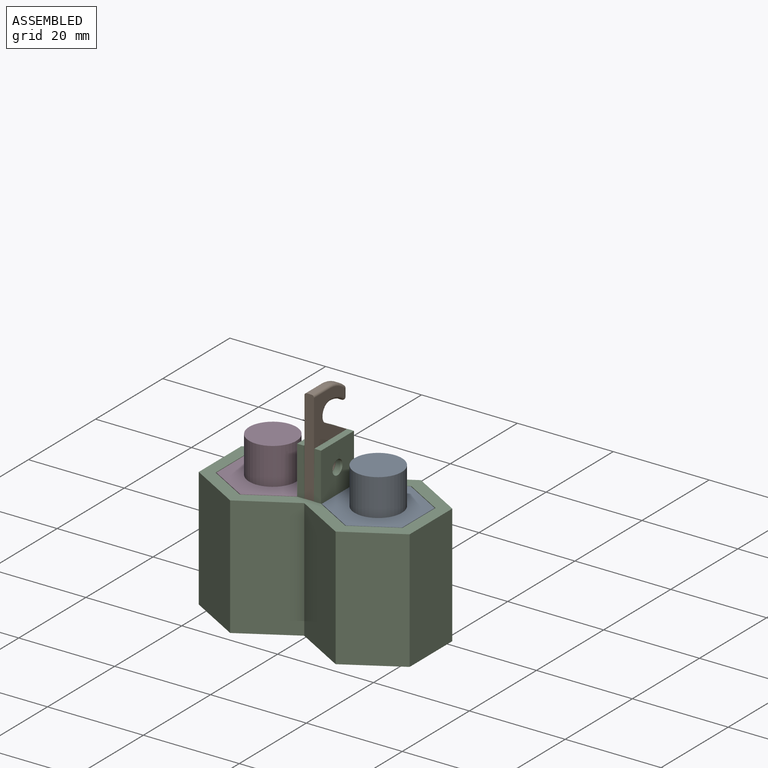
[diagram: assembled view]
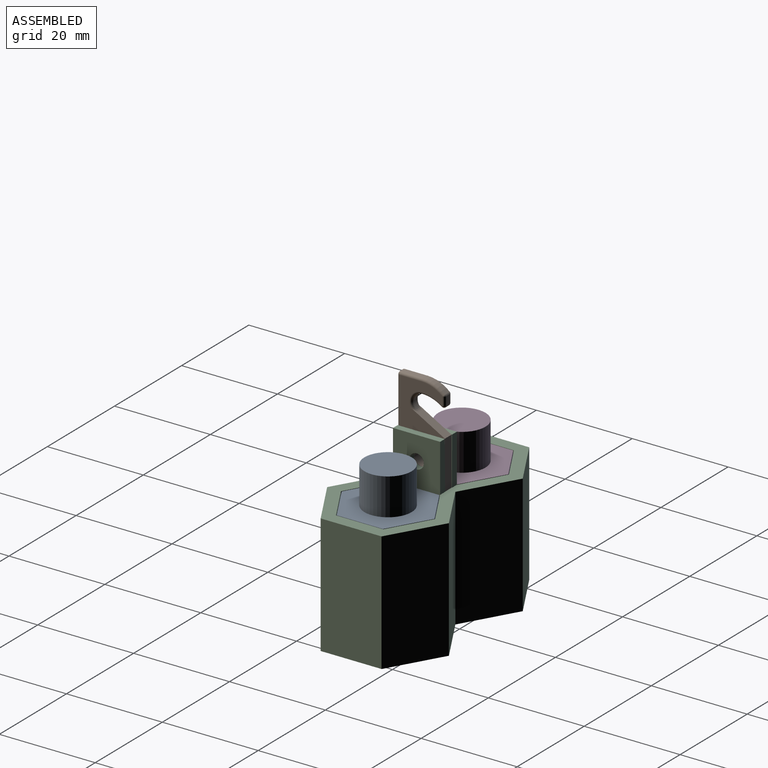
[diagram: assembled view, second angle]
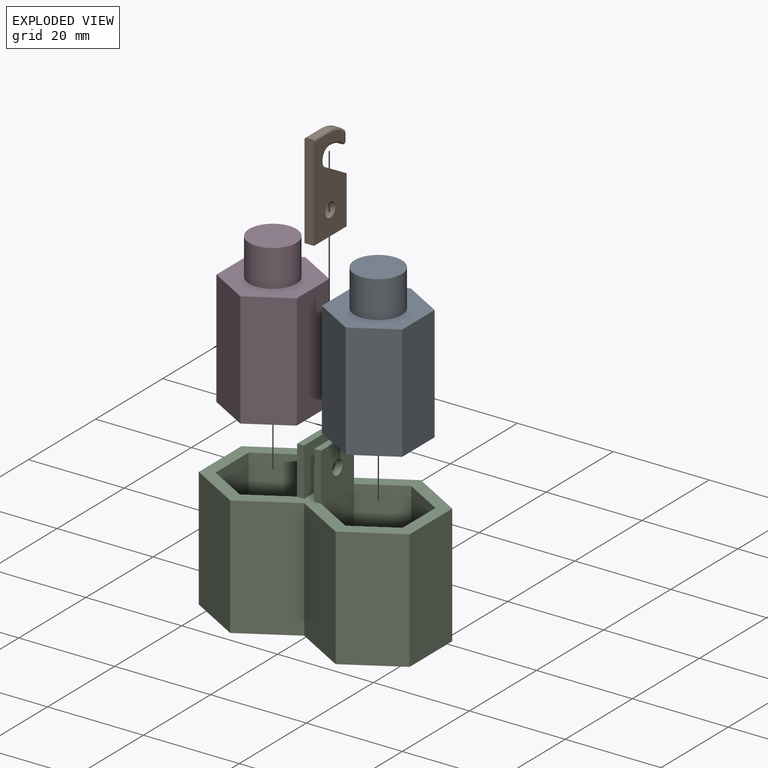
[diagram: exploded view]
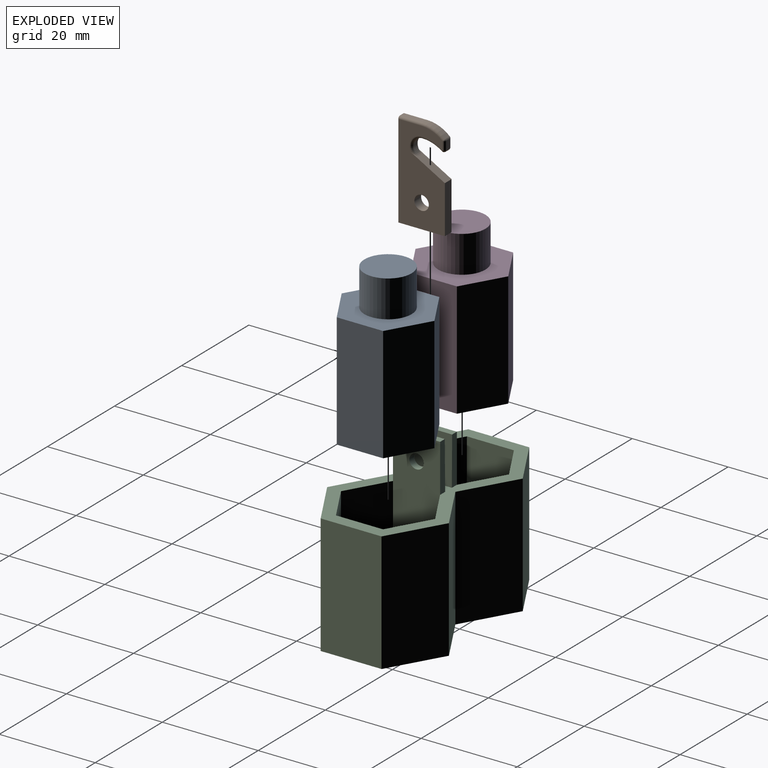
[diagram: exploded view, second angle]
ASSEMBLY  parts=4 mates=3
PART A: 10 faces, bbox 19.4x16.8x31.7 mm
  f0: plane 24x8.38mm, normal (0.87,-0.5,0), area 232.2mm2, adj f1,f5,f6,f7
  f1: plane 24x8.38mm, normal (0.87,0.5,0), area 232.2mm2, adj f0,f2,f6,f7
  f2: plane 24x9.68mm, normal (0,1,0), area 232.2mm2, adj f1,f3,f6,f7
  f3: plane 24x8.38mm, normal (-0.87,0.5,0), area 232.2mm2, adj f2,f4,f6,f7
  f4: plane 24x8.38mm, normal (-0.87,-0.5,0), area 232.2mm2, adj f3,f5,f6,f7
  f5: plane 24x9.68mm, normal (0,-1,0), area 232.2mm2, adj f0,f4,f6,f7
  f6: plane 19.35x16.76mm, normal (0,0,1), area 167.1mm2, adj f0,f1,f2,f3,f4,f5,f8
  f7: plane 19.35x16.76mm, normal (0,0,-1), area 243.3mm2, adj f0,f1,f2,f3,f4,f5
  f8: cylinder r=4.92mm len=9.85mm, axis (0,0,-1), area 238.3mm2, adj f6,f9
  f9: plane 9.85x9.85mm, normal (0,0,1), area 76.2mm2, adj f8
PART B: 28 faces, bbox 20.7x10x2.1 mm
  f0: plane 1.71x1mm, normal (0,-1,0), area 1.7mm2, adj f18,f19,f23,f24
  f1: plane 19.5x9.7mm, normal (0,0,1), area 142.1mm2, adj f3,f4,f6,f8,f11,f14,f17,f23
  f2: plane 19.5x9.7mm, normal (0,0,-1), area 142.1mm2, adj f3,f4,f6,f8,f11,f12,f13,f16
  f3: plane 9.7x2mm, normal (-1,0,0), area 19.4mm2, adj f1,f2,f4,f6
  f4: plane 10x2mm, normal (0,-1,0), area 20mm2, adj f1,f2,f3,f8
  f5: plane 4.85x1mm, normal (1,0,0), area 4.9mm2, adj f6,f10,f12,f14
  f6: plane 20x2mm, normal (0,1,0), area 39.9mm2, adj f1,f2,f3,f5,f12,f14
  f7: cylinder r=2mm len=3.73mm, axis (0,0,1), area 5.2mm2, adj f8,f9,f16,f27
  f8: plane 7.26x4.11mm, normal (0.87,-0.49,0), area 13.9mm2, adj f1,f2,f4,f7,f16,f27
  f9: cylinder r=6.97mm len=4.06mm, axis (0,0,1), area 4.3mm2, adj f7,f20,f24,f26
  f10: cylinder r=7.06mm len=4.69mm, axis (0,0,1), area 5.2mm2, adj f5,f13,f17,f18
  f11: cylinder r=1.5mm len=3mm, axis (0,0,1), area 18.8mm2, adj f1,f2
  f12: cylinder r=0.5mm len=4.85mm, axis (0,-1,0), area 3.8mm2, adj f2,f5,f6,f13
  f13: torus R=6.56mm, axis (0,0,1), area 3.9mm2, adj f2,f10,f12,f15
  f14: cylinder r=0.5mm len=4.85mm, axis (0,1,0), area 3.8mm2, adj f1,f5,f6,f17
  f15: sphere r=0.5mm, area 0.2mm2, adj f13,f18,f19
  f16: torus R=2.5mm, axis (0,0,1), area 3.9mm2, adj f2,f7,f8,f20
  f17: torus R=6.56mm, axis (0,0,1), area 3.9mm2, adj f1,f10,f14,f21
  f18: cylinder r=0.5mm len=1mm, axis (0,0,1), area 0.4mm2, adj f0,f10,f15,f21
  f19: cylinder r=0.5mm len=1.71mm, axis (1,0,0), area 1.3mm2, adj f0,f2,f15,f22
  f20: torus R=7.47mm, axis (0,0,1), area 3.5mm2, adj f2,f9,f16,f22
  f21: sphere r=0.5mm, area 0.2mm2, adj f17,f18,f23
  f22: sphere r=0.5mm, area 0.6mm2, adj f19,f20,f24
  f23: cylinder r=0.5mm len=1.71mm, axis (-1,0,0), area 1.3mm2, adj f0,f1,f21,f25
  f24: cylinder r=0.5mm len=1mm, axis (0,0,1), area 1.1mm2, adj f0,f9,f22,f25
  f25: sphere r=0.5mm, area 0.5mm2, adj f23,f24,f26
  f26: torus R=7.47mm, axis (0,0,1), area 3.5mm2, adj f1,f9,f25,f27
  f27: torus R=2.5mm, axis (0,0,1), area 3.9mm2, adj f1,f7,f8,f26
PART C: 36 faces, bbox 44x25.4x35 mm
  f0: plane 10x1.5mm, normal (0,-1,0), area 14.5mm2, adj f2,f4,f27,f34
  f1: plane 10x1.5mm, normal (0,1,0), area 14.5mm2, adj f4,f22,f32,f35
  f2: plane 9.82x1.4mm, normal (0,0,1), area 13.7mm2, adj f0,f27,f31,f34
  f3: cylinder r=1.5mm len=3mm, axis (1,0,0), area 13.7mm2, adj f27,f34
  f4: plane 44x25.4mm, normal (0,0,1), area 308.3mm2, adj f0,f1,f5,f6,f7,f8,f9,f10
  f5: plane 25x11mm, normal (-0.5,0.87,0), area 317.5mm2, adj f4,f6,f14,f15
  f6: plane 25x11mm, normal (0.5,0.87,0), area 317.5mm2, adj f4,f5,f7,f15
  f7: plane 25x11mm, normal (-0.5,0.87,0), area 317.5mm2, adj f4,f6,f8,f15
  f8: plane 25x12.7mm, normal (-1,0,0), area 317.5mm2, adj f4,f7,f9,f15
  f9: plane 25x11mm, normal (-0.5,-0.87,0), area 317.5mm2, adj f4,f8,f10,f15
  f10: plane 25x11mm, normal (0.5,-0.87,0), area 317.5mm2, adj f4,f9,f11,f15
  f11: plane 25x11mm, normal (-0.5,-0.87,0), area 317.5mm2, adj f4,f10,f12,f15
  f12: plane 25x11mm, normal (0.5,-0.87,0), area 317.5mm2, adj f4,f11,f13,f15
  f13: plane 25x12.7mm, normal (1,0,0), area 317.5mm2, adj f4,f12,f14,f15
  f14: plane 25x11mm, normal (0.5,0.87,0), area 317.5mm2, adj f4,f5,f13,f15
  f15: plane 44x25.4mm, normal (0,0,-1), area 838.3mm2, adj f5,f6,f7,f8,f9,f10,f11,f12
  f16: plane 24x8.5mm, normal (0.5,-0.87,0), area 235.6mm2, adj f4,f17,f27,f28
  f17: plane 24x8.5mm, normal (-0.5,-0.87,0), area 235.6mm2, adj f4,f16,f18,f28
  f18: plane 24x9.82mm, normal (-1,0,0), area 235.6mm2, adj f4,f17,f19,f28
  f19: plane 24x8.5mm, normal (-0.5,0.87,0), area 235.6mm2, adj f4,f18,f20,f28
  f20: plane 24x8.5mm, normal (0.5,0.87,0), area 235.6mm2, adj f4,f19,f27,f28
  f21: plane 24x8.5mm, normal (-0.5,-0.87,0), area 235.6mm2, adj f4,f22,f26,f29
  f22: plane 34x9.82mm, normal (-1,0,0), area 326.6mm2, adj f1,f21,f23,f29,f30,f32,f33
  f23: plane 24x8.5mm, normal (-0.5,0.87,0), area 235.6mm2, adj f4,f22,f24,f29
  f24: plane 24x8.5mm, normal (0.5,0.87,0), area 235.6mm2, adj f4,f23,f25,f29
  f25: plane 24x9.82mm, normal (1,0,0), area 235.6mm2, adj f4,f24,f26,f29
  f26: plane 24x8.5mm, normal (0.5,-0.87,0), area 235.6mm2, adj f4,f21,f25,f29
  f27: plane 34x9.82mm, normal (1,0,0), area 326.6mm2, adj f0,f2,f3,f16,f20,f28,f31
  f28: plane 19.63x17mm, normal (0,0,1), area 250.3mm2, adj f16,f17,f18,f19,f20,f27
  f29: plane 19.63x17mm, normal (0,0,1), area 250.3mm2, adj f21,f22,f23,f24,f25,f26
  f30: plane 10x1.5mm, normal (0,-1,0), area 14.5mm2, adj f4,f22,f32,f35
  f31: plane 10x1.5mm, normal (0,1,0), area 14.5mm2, adj f2,f4,f27,f34
  f32: plane 9.82x1.4mm, normal (0,0,1), area 13.7mm2, adj f1,f22,f30,f35
  f33: cylinder r=1.5mm len=3mm, axis (1,0,0), area 13.7mm2, adj f22,f35
  f34: plane 10.01x9.82mm, normal (-1,0,0.01), area 91.1mm2, adj f0,f2,f3,f4,f31
  f35: plane 10x9.82mm, normal (1,0,0.01), area 91.1mm2, adj f1,f4,f30,f32,f33
PART D: same geometry as A
PLACE A rot(axis=(0,0,1),90deg) t=(11.7,13.28,8.31)mm
PLACE B rot(axis=(-0.71,0,-0.71),180deg) t=(-0.3,13.28,42.31)mm
PLACE C t=(0.7,13.28,7.31)mm
PLACE D rot(axis=(0,0,1),90deg) t=(-10.3,13.28,8.31)mm
MATE fastened D.f8 <-> C.f29  axis (0,0,-1) through (-10.3,13.28,8.31)mm
MATE fastened A.f8 <-> C.f28  axis (0,0,-1) through (11.7,13.28,8.31)mm
MATE fastened B.f3 <-> C.f4  axis (0,0,-1) through (0.7,13.28,32.31)mm
